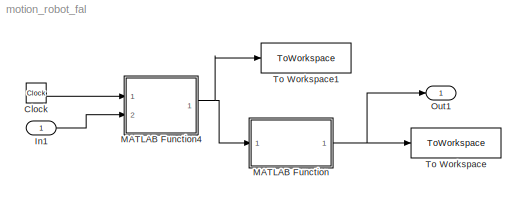
MODEL motion_robot_fal
KIND model
BLOCK [Clock] Clock
  SID = 109
BLOCK [Inport] In1
  IconDisplay = Port number
  SID = 407
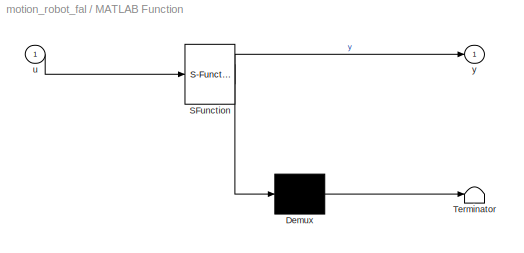
BLOCK [SubSystem] MATLAB Function
  ErrorFcn = Stateflow.Translate.translate
  PermitHierarchicalResolution = ExplicitOnly
  Ports = [1, 1]
  RequestExecContextInheritance = off
  SFBlockType = MATLAB Function
  SID = 405
  TreatAsAtomicUnit = on
BLOCK [Demux] MATLAB Function/ Demux 
  Outputs = 1
  Ports = [1, 1]
  SID = 405::20
BLOCK [S-Function] MATLAB Function/ SFunction 
  EnableBusSupport = on
  FunctionName = sf_sfun
  Parameters = robotDis,sensitivityDis
  PortCounts = [1 2]
  Ports = [1, 2]
  SFcnIsStateOwnerBlock = off
  SFunctionDeploymentMode = off
  SID = 405::19
  Tag = Stateflow S-Function 2
BLOCK [Terminator] MATLAB Function/ Terminator 
  SID = 405::21
BLOCK [Inport] MATLAB Function/u
  IconDisplay = Port number
  SID = 405::1
BLOCK [Outport] MATLAB Function/y
  IconDisplay = Port number
  SID = 405::5
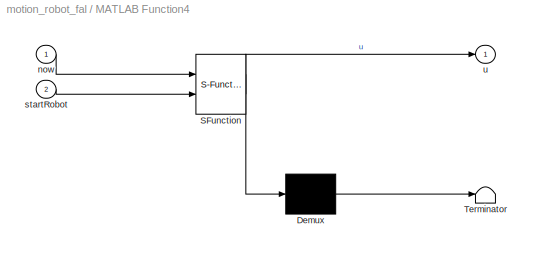
BLOCK [SubSystem] MATLAB Function4
  ErrorFcn = Stateflow.Translate.translate
  PermitHierarchicalResolution = ExplicitOnly
  Ports = [2, 1]
  RequestExecContextInheritance = off
  SFBlockType = MATLAB Function
  SID = 108
  TreatAsAtomicUnit = on
BLOCK [Demux] MATLAB Function4/ Demux 
  Outputs = 1
  Ports = [1, 1]
  SID = 108::20
BLOCK [S-Function] MATLAB Function4/ SFunction 
  EnableBusSupport = on
  FunctionName = sf_sfun
  Parameters = timeRobot
  PortCounts = [2 2]
  Ports = [2, 2]
  SFcnIsStateOwnerBlock = off
  SFunctionDeploymentMode = off
  SID = 108::19
  Tag = Stateflow S-Function 5
BLOCK [Terminator] MATLAB Function4/ Terminator 
  SID = 108::21
BLOCK [Inport] MATLAB Function4/now
  IconDisplay = Port number
  SID = 108::27
BLOCK [Inport] MATLAB Function4/startRobot
  IconDisplay = Port number
  Port = 2
  SID = 108::30
BLOCK [Outport] MATLAB Function4/u
  IconDisplay = Port number
  SID = 108::5
BLOCK [Outport] Out1
  IconDisplay = Port number
  SID = 408
BLOCK [ToWorkspace] To Workspace
  FixptAsFi = on
  MaxDataPoints = inf
  Ports = [1]
  SID = 93
  SampleTime = -1
  VariableName = motion
BLOCK [ToWorkspace] To Workspace1
  FixptAsFi = on
  MaxDataPoints = inf
  Ports = [1]
  SID = 406
  SampleTime = -1
  VariableName = robotOn
LINE Clock:1 -> MATLAB Function4:1
LINE In1:1 -> MATLAB Function4:2
LINE MATLAB Function/ Demux :1 -> MATLAB Function/ Terminator :1
LINE MATLAB Function/ SFunction :1 -> MATLAB Function/ Demux :1
LINE MATLAB Function/ SFunction :2 -> MATLAB Function/y:1
LINE MATLAB Function/u:1 -> MATLAB Function/ SFunction :1
LINE MATLAB Function4/ Demux :1 -> MATLAB Function4/ Terminator :1
LINE MATLAB Function4/ SFunction :1 -> MATLAB Function4/ Demux :1
LINE MATLAB Function4/ SFunction :2 -> MATLAB Function4/u:1
LINE MATLAB Function4/now:1 -> MATLAB Function4/ SFunction :1
LINE MATLAB Function4/startRobot:1 -> MATLAB Function4/ SFunction :2
NET MATLAB Function4:1 -> MATLAB Function:1, To Workspace1:1
NET MATLAB Function:1 -> Out1:1, To Workspace:1
note: NET lines group one-source signal fan-out (src -> all destinations, sorted); 1:1 wires keep LINE
CHART MATLAB Function states=1 transitions=1
  STATE_LABEL 'eML_blk_kernel()'
CHART MATLAB Function4 states=1 transitions=1
  STATE_LABEL 'eML_blk_kernel()'
